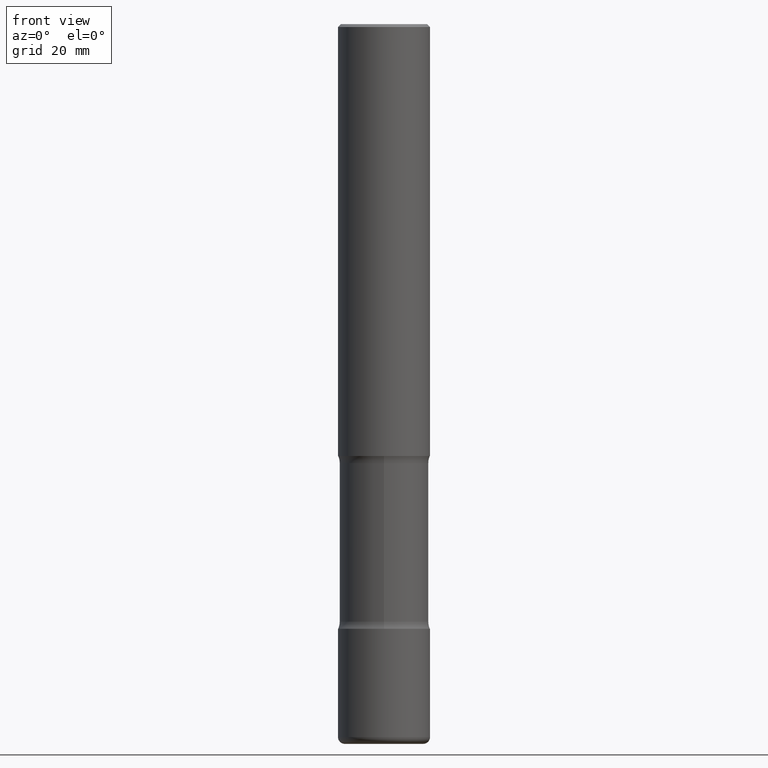
[diagram: clean part render]
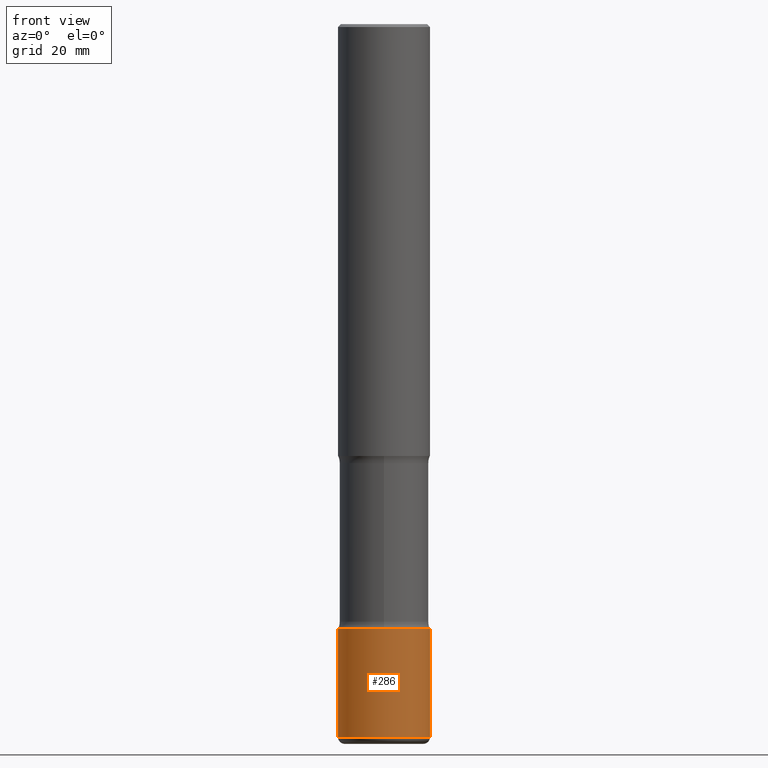
[diagram: same view with one face highlighted and labeled with its STEP entity id]
A machine part, front view. The second image highlights one B-rep face of the part: STEP entity #286.
In plain terms, the highlighted cylindrical surface (partial cylindrical patch) has radius 7.9997 mm, axis along (-0, 0, 1).
Its self-contained STEP definition (entity closure, byte-faithful):
#51 = EDGE_CURVE ( 'NONE', #383, #387, #357, .T. ) ;
#59 = DIRECTION ( 'NONE',  ( 1.000000000000000000, -6.982962677686267499E-15, 4.876176775795935232E-29 ) ) ;
#72 = ORIENTED_EDGE ( 'NONE', *, *, #51, .T. ) ;
#90 = DIRECTION ( 'NONE',  ( -2.445468806185136597E-29, 3.491481338843145583E-15, 1.000000000000000000 ) ) ;
#110 = VECTOR ( 'NONE', #354, 39.37007874015748143 ) ;
#115 = LINE ( 'NONE', #287, #210 ) ;
#122 = AXIS2_PLACEMENT_3D ( 'NONE', #380, #90, #464 ) ;
#131 = EDGE_CURVE ( 'NONE', #370, #383, #199, .T. ) ;
#162 = ORIENTED_EDGE ( 'NONE', *, *, #537, .F. ) ;
#165 = VERTEX_POINT ( 'NONE', #539 ) ;
#168 = ORIENTED_EDGE ( 'NONE', *, *, #397, .F. ) ;
#196 = CARTESIAN_POINT ( 'NONE',  ( -0.3149500000000002853, -1.477997484737894116E-14, -4.874100000000001209 ) ) ;
#199 = CIRCLE ( 'NONE', #274, 0.3149500000000002853 ) ;
#210 = VECTOR ( 'NONE', #461, 39.37007874015748143 ) ;
#229 = DIRECTION ( 'NONE',  ( -2.445468806185136597E-29, 3.491481338843145583E-15, 1.000000000000000000 ) ) ;
#243 = CARTESIAN_POINT ( 'NONE',  ( 0.3149500000000002853, -1.921711328899267175E-14, -4.874100000000001209 ) ) ;
#257 = CARTESIAN_POINT ( 'NONE',  ( 0.3149500000000001743, -1.663271880198097216E-14, -4.133899999999999686 ) ) ;
#274 = AXIS2_PLACEMENT_3D ( 'NONE', #551, #229, #406 ) ;
#286 = ADVANCED_FACE ( 'NONE', ( #465 ), #316, .T. ) ;
#287 = CARTESIAN_POINT ( 'NONE',  ( -0.3149500000000002298, 2.237854346276437168E-15, -1.549218606675783517E-29 ) ) ;
#289 = EDGE_LOOP ( 'NONE', ( #162, #509, #72, #168 ) ) ;
#302 = CIRCLE ( 'NONE', #122, 0.3149500000000001743 ) ;
#316 = CYLINDRICAL_SURFACE ( 'NONE', #451, 0.3149500000000002298 ) ;
#354 = DIRECTION ( 'NONE',  ( -2.445468806185136877E-29, 3.491481338843145188E-15, 1.000000000000000000 ) ) ;
#357 = LINE ( 'NONE', #481, #110 ) ;
#370 = VERTEX_POINT ( 'NONE', #196 ) ;
#380 = CARTESIAN_POINT ( 'NONE',  ( 1.010932349788873450E-28, -1.443343470664368071E-14, -4.133899999999999686 ) ) ;
#383 = VERTEX_POINT ( 'NONE', #243 ) ;
#387 = VERTEX_POINT ( 'NONE', #257 ) ;
#397 = EDGE_CURVE ( 'NONE', #165, #387, #302, .T. ) ;
#406 = DIRECTION ( 'NONE',  ( 1.000000000000000000, -6.982962677686269866E-15, 0.000000000000000000 ) ) ;
#443 = CARTESIAN_POINT ( 'NONE',  ( 0.000000000000000000, 0.000000000000000000, 0.000000000000000000 ) ) ;
#451 = AXIS2_PLACEMENT_3D ( 'NONE', #443, #487, #59 ) ;
#461 = DIRECTION ( 'NONE',  ( -2.445468806185136877E-29, 3.491481338843145188E-15, 1.000000000000000000 ) ) ;
#464 = DIRECTION ( 'NONE',  ( 1.000000000000000000, -6.982962677686265922E-15, 0.000000000000000000 ) ) ;
#465 = FACE_OUTER_BOUND ( 'NONE', #289, .T. ) ;
#481 = CARTESIAN_POINT ( 'NONE',  ( 0.3149500000000002298, -2.199284095337291449E-15, 1.535751875536930971E-29 ) ) ;
#487 = DIRECTION ( 'NONE',  ( -2.445468806185136597E-29, 3.491481338843145583E-15, 1.000000000000000000 ) ) ;
#509 = ORIENTED_EDGE ( 'NONE', *, *, #131, .T. ) ;
#537 = EDGE_CURVE ( 'NONE', #370, #165, #115, .T. ) ;
#539 = CARTESIAN_POINT ( 'NONE',  ( -0.3149500000000001743, -1.348777760387309294E-14, -4.133899999999999686 ) ) ;
#551 = CARTESIAN_POINT ( 'NONE',  ( 1.191945950822697745E-28, -1.701782919365538030E-14, -4.874100000000001209 ) ) ;